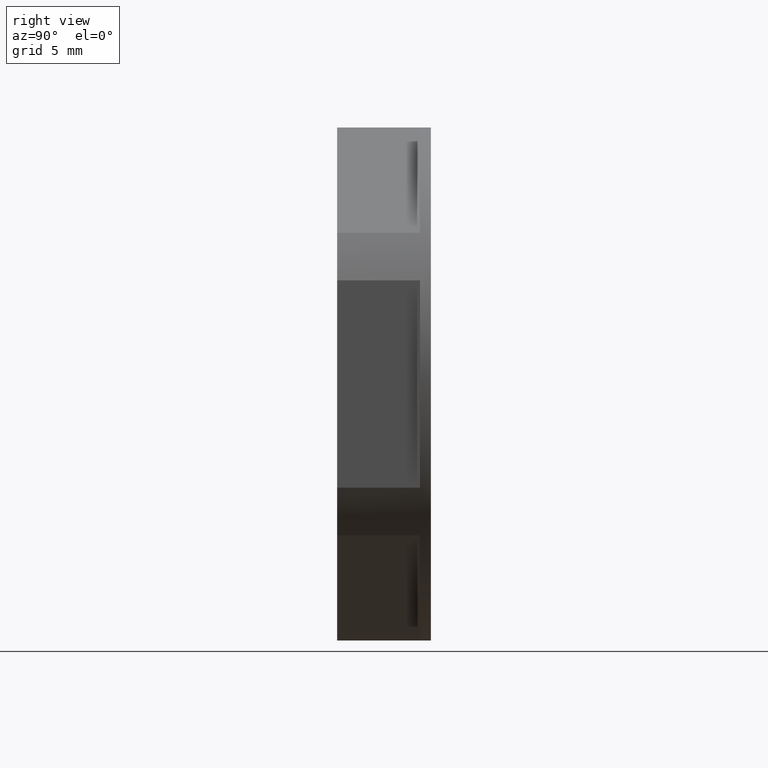
[diagram: clean part render]
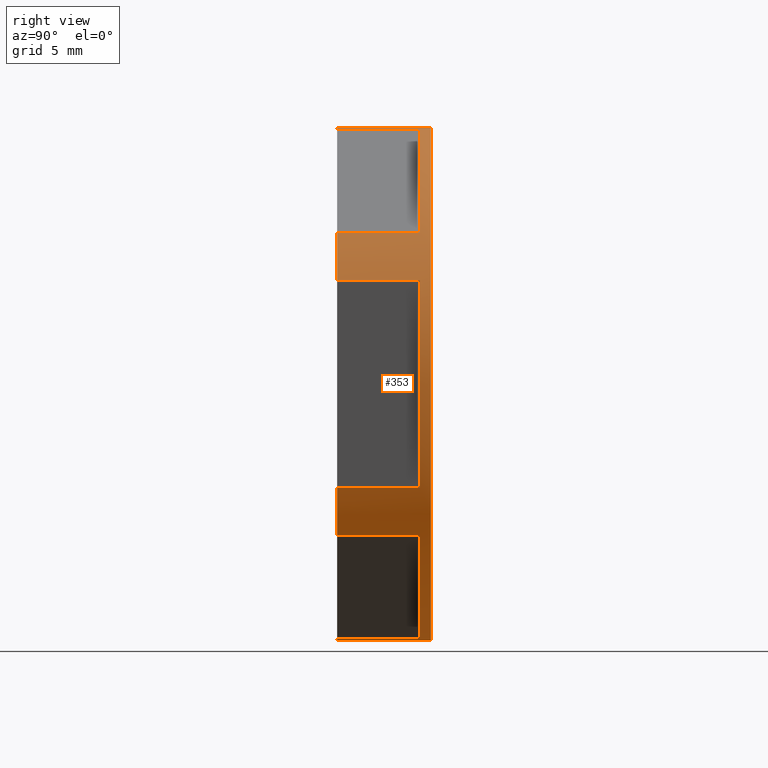
[diagram: same view with one face highlighted and labeled with its STEP entity id]
A machine part, right view. The second image highlights one B-rep face of the part: STEP entity #353.
In plain terms, the highlighted cylindrical surface (partial cylindrical patch) has radius 16.4 mm, axis along (0, 1, 0).
Its self-contained STEP definition (entity closure, byte-faithful):
#93 = CYLINDRICAL_SURFACE ( 'NONE', #2161, 16.40000000000000200 ) ;
#108 = DIRECTION ( 'NONE',  ( 0.0000000000000000000, 0.0000000000000000000, 1.000000000000000000 ) ) ;
#112 = FACE_OUTER_BOUND ( 'NONE', #900, .T. ) ;
#114 = LINE ( 'NONE', #119, #2151 ) ;
#119 = CARTESIAN_POINT ( 'NONE',  ( 2.875782488590063300E-015, -0.6864403799322559300, -16.40000000000000200 ) ) ;
#120 = DIRECTION ( 'NONE',  ( 0.0000000000000000000, 1.000000000000000000, 0.0000000000000000000 ) ) ;
#123 = CARTESIAN_POINT ( 'NONE',  ( 8.673617379884039400E-016, -0.6864403799322559300, 0.0000000000000000000 ) ) ;
#135 = LINE ( 'NONE', #151, #2146 ) ;
#141 = CARTESIAN_POINT ( 'NONE',  ( 1.758049112017766800, -18.83904097094790200, 16.30549794761673600 ) ) ;
#143 = CARTESIAN_POINT ( 'NONE',  ( 2.875782488590063300E-015, -18.83904097094790200, -16.40000000000000200 ) ) ;
#145 = LINE ( 'NONE', #165, #2166 ) ;
#146 = CARTESIAN_POINT ( 'NONE',  ( 8.673617379884039400E-016, -18.83904097094790200, 0.0000000000000000000 ) ) ;
#147 = DIRECTION ( 'NONE',  ( 0.0000000000000000000, 1.000000000000000000, 0.0000000000000000000 ) ) ;
#148 = CARTESIAN_POINT ( 'NONE',  ( 15.00000000000000000, -18.83904097094790200, -6.630233781700320100 ) ) ;
#151 = CARTESIAN_POINT ( 'NONE',  ( 15.00000000000000000, -0.6864403799322559300, -6.630233781700320100 ) ) ;
#153 = DIRECTION ( 'NONE',  ( -0.0000000000000000000, -1.000000000000000000, -0.0000000000000000000 ) ) ;
#156 = DIRECTION ( 'NONE',  ( 0.0000000000000000000, 1.000000000000000000, 0.0000000000000000000 ) ) ;
#157 = CARTESIAN_POINT ( 'NONE',  ( 8.673617379884039400E-016, -12.83904097094786000, 16.40000000000000200 ) ) ;
#161 = CARTESIAN_POINT ( 'NONE',  ( 13.24195088798223600, -0.6864403799322559300, 9.675264165916429300 ) ) ;
#162 = CARTESIAN_POINT ( 'NONE',  ( 8.673617379884039400E-016, -18.83904097094790200, 16.40000000000000200 ) ) ;
#163 = LINE ( 'NONE', #161, #2147 ) ;
#164 = DIRECTION ( 'NONE',  ( 0.0000000000000000000, 0.0000000000000000000, 1.000000000000000000 ) ) ;
#165 = CARTESIAN_POINT ( 'NONE',  ( 13.24195088798225900, -0.6864403799322559300, -9.675264165916397400 ) ) ;
#169 = DIRECTION ( 'NONE',  ( -0.0000000000000000000, -1.000000000000000000, -0.0000000000000000000 ) ) ;
#171 = CARTESIAN_POINT ( 'NONE',  ( 8.673617379884039400E-016, -12.83904097094786000, 0.0000000000000000000 ) ) ;
#172 = DIRECTION ( 'NONE',  ( 0.0000000000000000000, 0.0000000000000000000, 1.000000000000000000 ) ) ;
#173 = DIRECTION ( 'NONE',  ( -0.0000000000000000000, -1.000000000000000000, -0.0000000000000000000 ) ) ;
#174 = DIRECTION ( 'NONE',  ( 0.0000000000000000000, 1.000000000000000000, 0.0000000000000000000 ) ) ;
#181 = CARTESIAN_POINT ( 'NONE',  ( 15.00000000000000000, -13.53903905495021900, 6.630233781700318300 ) ) ;
#182 = CARTESIAN_POINT ( 'NONE',  ( 15.00000000000000000, -18.83904097094790200, 6.630233781700318300 ) ) ;
#195 = CARTESIAN_POINT ( 'NONE',  ( 13.24195088798223600, -18.83904097094790200, 9.675264165916429300 ) ) ;
#196 = CARTESIAN_POINT ( 'NONE',  ( 13.24195088798223600, -13.53903905495021900, 9.675264165916429300 ) ) ;
#197 = CARTESIAN_POINT ( 'NONE',  ( 1.758049112017765700, -13.53903905495021900, 16.30549794761673600 ) ) ;
#199 = CARTESIAN_POINT ( 'NONE',  ( 2.875782488590063300E-015, -12.83904097094786000, -16.40000000000000200 ) ) ;
#202 = CARTESIAN_POINT ( 'NONE',  ( 15.00000000000000000, -13.53903905495021900, -6.630233781700320100 ) ) ;
#203 = CARTESIAN_POINT ( 'NONE',  ( 1.758049112017730600, -18.83904097094790200, -16.30549794761674000 ) ) ;
#205 = CARTESIAN_POINT ( 'NONE',  ( 1.758049112017728600, -13.53903905495021900, -16.30549794761674000 ) ) ;
#206 = CARTESIAN_POINT ( 'NONE',  ( 13.24195088798225900, -18.83904097094790200, -9.675264165916397400 ) ) ;
#207 = CARTESIAN_POINT ( 'NONE',  ( 13.24195088798225900, -13.53903905495021900, -9.675264165916397400 ) ) ;
#257 = EDGE_CURVE ( 'NONE', #943, #964, #2066, .T. ) ;
#260 = EDGE_CURVE ( 'NONE', #939, #957, #2075, .T. ) ;
#278 = EDGE_CURVE ( 'NONE', #955, #956, #2080, .T. ) ;
#286 = EDGE_CURVE ( 'NONE', #949, #959, #676, .T. ) ;
#289 = EDGE_CURVE ( 'NONE', #920, #937, #711, .T. ) ;
#290 = EDGE_CURVE ( 'NONE', #958, #949, #2099, .T. ) ;
#294 = EDGE_CURVE ( 'NONE', #928, #951, #697, .T. ) ;
#301 = EDGE_CURVE ( 'NONE', #951, #945, #2090, .T. ) ;
#304 = EDGE_CURVE ( 'NONE', #920, #928, #2073, .T. ) ;
#308 = EDGE_CURVE ( 'NONE', #964, #955, #798, .T. ) ;
#353 = ADVANCED_FACE ( 'NONE', ( #112 ), #93, .T. ) ;
#371 = EDGE_CURVE ( 'NONE', #956, #939, #135, .T. ) ;
#372 = EDGE_CURVE ( 'NONE', #945, #943, #163, .T. ) ;
#373 = EDGE_CURVE ( 'NONE', #959, #919, #2149, .T. ) ;
#374 = EDGE_CURVE ( 'NONE', #919, #950, #114, .T. ) ;
#375 = EDGE_CURVE ( 'NONE', #950, #937, #2154, .T. ) ;
#376 = EDGE_CURVE ( 'NONE', #957, #958, #145, .T. ) ;
#377 = CARTESIAN_POINT ( 'NONE',  ( 8.673617379884039400E-016, -18.83904097094790200, 0.0000000000000000000 ) ) ;
#379 = DIRECTION ( 'NONE',  ( 0.0000000000000000000, 0.0000000000000000000, 1.000000000000000000 ) ) ;
#383 = DIRECTION ( 'NONE',  ( 0.0000000000000000000, 1.000000000000000000, 0.0000000000000000000 ) ) ;
#387 = CARTESIAN_POINT ( 'NONE',  ( 8.673617379884039400E-016, -18.83904097094790200, 0.0000000000000000000 ) ) ;
#388 = DIRECTION ( 'NONE',  ( 0.0000000000000000000, 1.000000000000000000, 0.0000000000000000000 ) ) ;
#403 = DIRECTION ( 'NONE',  ( 0.0000000000000000000, 0.0000000000000000000, 1.000000000000000000 ) ) ;
#615 = CARTESIAN_POINT ( 'NONE',  ( 8.673617379884039400E-016, -13.53903841628434000, 0.0000000000000000000 ) ) ;
#646 = DIRECTION ( 'NONE',  ( 0.0000000000000000000, 0.0000000000000000000, 1.000000000000000000 ) ) ;
#654 = CARTESIAN_POINT ( 'NONE',  ( 1.758049112017730600, -0.6864403799322559300, -16.30549794761674000 ) ) ;
#676 = LINE ( 'NONE', #654, #2095 ) ;
#678 = DIRECTION ( 'NONE',  ( -0.0000000000000000000, -1.000000000000000000, -0.0000000000000000000 ) ) ;
#682 = DIRECTION ( 'NONE',  ( 0.0000000000000000000, 1.000000000000000000, 0.0000000000000000000 ) ) ;
#688 = DIRECTION ( 'NONE',  ( 0.0000000000000000000, 1.000000000000000000, 0.0000000000000000000 ) ) ;
#694 = DIRECTION ( 'NONE',  ( 0.0000000000000000000, 0.0000000000000000000, 1.000000000000000000 ) ) ;
#697 = LINE ( 'NONE', #721, #2069 ) ;
#700 = DIRECTION ( 'NONE',  ( 0.0000000000000000000, 1.000000000000000000, 0.0000000000000000000 ) ) ;
#711 = LINE ( 'NONE', #734, #2098 ) ;
#721 = CARTESIAN_POINT ( 'NONE',  ( 1.758049112017766800, -0.6864403799322559300, 16.30549794761673600 ) ) ;
#722 = CARTESIAN_POINT ( 'NONE',  ( 8.673617379884039400E-016, -13.53903841628434000, 0.0000000000000000000 ) ) ;
#733 = DIRECTION ( 'NONE',  ( 0.0000000000000000000, 1.000000000000000000, 0.0000000000000000000 ) ) ;
#734 = CARTESIAN_POINT ( 'NONE',  ( 8.673617379884039400E-016, -0.6864403799322559300, 16.40000000000000200 ) ) ;
#741 = DIRECTION ( 'NONE',  ( 0.0000000000000000000, 0.0000000000000000000, 1.000000000000000000 ) ) ;
#745 = DIRECTION ( 'NONE',  ( 0.0000000000000000000, 1.000000000000000000, 0.0000000000000000000 ) ) ;
#763 = DIRECTION ( 'NONE',  ( 0.0000000000000000000, 1.000000000000000000, 0.0000000000000000000 ) ) ;
#769 = DIRECTION ( 'NONE',  ( 0.0000000000000000000, 0.0000000000000000000, 1.000000000000000000 ) ) ;
#783 = CARTESIAN_POINT ( 'NONE',  ( 8.673617379884039400E-016, -13.53903841628434000, 0.0000000000000000000 ) ) ;
#786 = CARTESIAN_POINT ( 'NONE',  ( 8.673617379884039400E-016, -18.83904097094790200, 0.0000000000000000000 ) ) ;
#798 = LINE ( 'NONE', #821, #2087 ) ;
#815 = DIRECTION ( 'NONE',  ( 0.0000000000000000000, 1.000000000000000000, 0.0000000000000000000 ) ) ;
#821 = CARTESIAN_POINT ( 'NONE',  ( 15.00000000000000000, -0.6864403799322559300, 6.630233781700318300 ) ) ;
#900 = EDGE_LOOP ( 'NONE', ( #1032, #1052, #1098, #1101, #1062, #1095, #1104, #1044, #1035, #1078, #1075, #1029, #1036, #1055, #1110, #1094 ) ) ;
#919 = VERTEX_POINT ( 'NONE', #143 ) ;
#920 = VERTEX_POINT ( 'NONE', #162 ) ;
#928 = VERTEX_POINT ( 'NONE', #141 ) ;
#937 = VERTEX_POINT ( 'NONE', #157 ) ;
#939 = VERTEX_POINT ( 'NONE', #148 ) ;
#943 = VERTEX_POINT ( 'NONE', #195 ) ;
#945 = VERTEX_POINT ( 'NONE', #196 ) ;
#949 = VERTEX_POINT ( 'NONE', #205 ) ;
#950 = VERTEX_POINT ( 'NONE', #199 ) ;
#951 = VERTEX_POINT ( 'NONE', #197 ) ;
#955 = VERTEX_POINT ( 'NONE', #181 ) ;
#956 = VERTEX_POINT ( 'NONE', #202 ) ;
#957 = VERTEX_POINT ( 'NONE', #206 ) ;
#958 = VERTEX_POINT ( 'NONE', #207 ) ;
#959 = VERTEX_POINT ( 'NONE', #203 ) ;
#964 = VERTEX_POINT ( 'NONE', #182 ) ;
#1029 = ORIENTED_EDGE ( 'NONE', *, *, #371, .T. ) ;
#1032 = ORIENTED_EDGE ( 'NONE', *, *, #373, .T. ) ;
#1035 = ORIENTED_EDGE ( 'NONE', *, *, #257, .T. ) ;
#1036 = ORIENTED_EDGE ( 'NONE', *, *, #260, .T. ) ;
#1044 = ORIENTED_EDGE ( 'NONE', *, *, #372, .T. ) ;
#1052 = ORIENTED_EDGE ( 'NONE', *, *, #374, .T. ) ;
#1055 = ORIENTED_EDGE ( 'NONE', *, *, #376, .T. ) ;
#1062 = ORIENTED_EDGE ( 'NONE', *, *, #304, .T. ) ;
#1075 = ORIENTED_EDGE ( 'NONE', *, *, #278, .T. ) ;
#1078 = ORIENTED_EDGE ( 'NONE', *, *, #308, .T. ) ;
#1094 = ORIENTED_EDGE ( 'NONE', *, *, #286, .T. ) ;
#1095 = ORIENTED_EDGE ( 'NONE', *, *, #294, .T. ) ;
#1098 = ORIENTED_EDGE ( 'NONE', *, *, #375, .T. ) ;
#1101 = ORIENTED_EDGE ( 'NONE', *, *, #289, .F. ) ;
#1104 = ORIENTED_EDGE ( 'NONE', *, *, #301, .T. ) ;
#1110 = ORIENTED_EDGE ( 'NONE', *, *, #290, .T. ) ;
#2066 = CIRCLE ( 'NONE', #2105, 16.40000000000000200 ) ;
#2069 = VECTOR ( 'NONE', #700, 1000.000000000000000 ) ;
#2072 = AXIS2_PLACEMENT_3D ( 'NONE', #615, #682, #646 ) ;
#2073 = CIRCLE ( 'NONE', #2083, 16.40000000000000200 ) ;
#2075 = CIRCLE ( 'NONE', #2106, 16.40000000000000200 ) ;
#2080 = CIRCLE ( 'NONE', #2072, 16.40000000000000200 ) ;
#2083 = AXIS2_PLACEMENT_3D ( 'NONE', #786, #763, #769 ) ;
#2084 = AXIS2_PLACEMENT_3D ( 'NONE', #722, #733, #694 ) ;
#2087 = VECTOR ( 'NONE', #815, 1000.000000000000000 ) ;
#2090 = CIRCLE ( 'NONE', #2094, 16.40000000000000200 ) ;
#2094 = AXIS2_PLACEMENT_3D ( 'NONE', #783, #745, #741 ) ;
#2095 = VECTOR ( 'NONE', #678, 1000.000000000000000 ) ;
#2098 = VECTOR ( 'NONE', #688, 1000.000000000000000 ) ;
#2099 = CIRCLE ( 'NONE', #2084, 16.40000000000000200 ) ;
#2105 = AXIS2_PLACEMENT_3D ( 'NONE', #377, #383, #379 ) ;
#2106 = AXIS2_PLACEMENT_3D ( 'NONE', #387, #388, #403 ) ;
#2146 = VECTOR ( 'NONE', #169, 1000.000000000000000 ) ;
#2147 = VECTOR ( 'NONE', #153, 1000.000000000000000 ) ;
#2149 = CIRCLE ( 'NONE', #2150, 16.40000000000000200 ) ;
#2150 = AXIS2_PLACEMENT_3D ( 'NONE', #146, #174, #172 ) ;
#2151 = VECTOR ( 'NONE', #156, 1000.000000000000000 ) ;
#2154 = CIRCLE ( 'NONE', #2167, 16.40000000000000200 ) ;
#2161 = AXIS2_PLACEMENT_3D ( 'NONE', #123, #120, #108 ) ;
#2166 = VECTOR ( 'NONE', #147, 1000.000000000000000 ) ;
#2167 = AXIS2_PLACEMENT_3D ( 'NONE', #171, #173, #164 ) ;